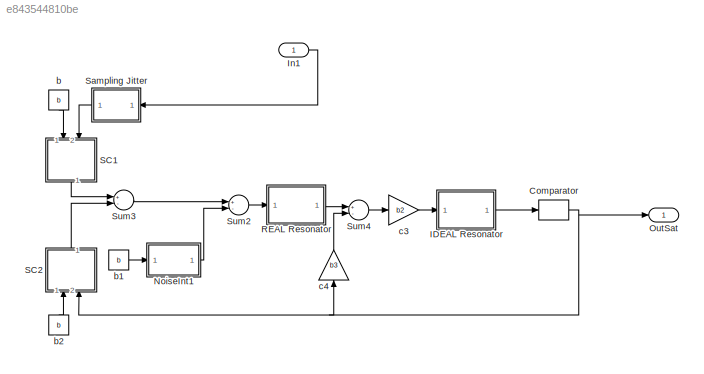
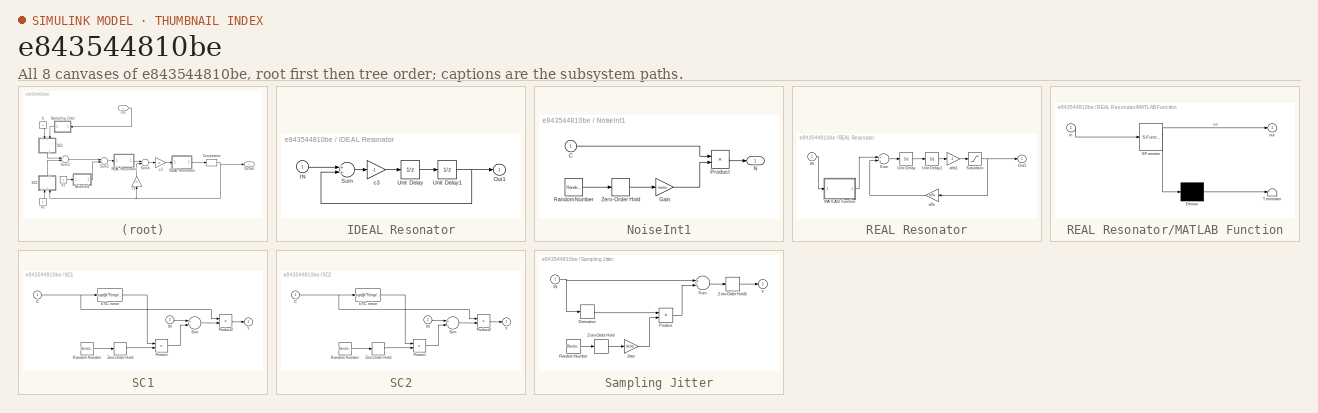
[diagram: thumbnail index - all 8 canvases of the model, root first then tree order]
MODEL slx_e843544810be
KIND model
CONFIG AbsTol = 1e-3
CONFIG FixedStep = Ts
CONFIG MaxStep = 3.90625e-06
CONFIG MinStep = auto
CONFIG RelTol = 1e-3
CONFIG SampleTimeConstraint = Unconstrained
CONFIG Solver = ode3
CONFIG SolverMode = SingleTasking
CONFIG SolverName = ode3
CONFIG StartTime = 0.0
CONFIG StopTime = 6e-3
BLOCK [Relay] Comparator
  OffOutputValue = -Vref
  OnOutputValue = Vref
BLOCK [SubSystem] IDEAL Resonator
  Ports = [1, 1]
  RequestExecContextInheritance = off
BLOCK [Inport] IDEAL Resonator/IN
  IconDisplay = Port number
BLOCK [Outport] IDEAL Resonator/Out1
  IconDisplay = Port number
BLOCK [Sum] IDEAL Resonator/Sum
  Ports = [2, 1]
BLOCK [UnitDelay] IDEAL Resonator/Unit Delay
  InitialCondition = 1
  SampleTime = -1
BLOCK [UnitDelay] IDEAL Resonator/Unit Delay1
  InitialCondition = 1
  SampleTime = -1
BLOCK [Gain] IDEAL Resonator/c3
  Gain = -1
BLOCK [Inport] In1
  IconDisplay = Port number
BLOCK [SubSystem] NoiseInt1
  Ports = [1, 1]
  RequestExecContextInheritance = off
BLOCK [Inport] NoiseInt1/C
  IconDisplay = Port number
BLOCK [Gain] NoiseInt1/Gain
  Gain = noise
BLOCK [Outport] NoiseInt1/N
  IconDisplay = Port number
  InitialOutput = 0
BLOCK [Product] NoiseInt1/Product
  Ports = [2, 1]
BLOCK [RandomNumber] NoiseInt1/Random Number
  SampleTime = Ts
  Seed = seed
BLOCK [ZeroOrderHold] NoiseInt1/Zero-Order Hold
  SampleTime = Ts
BLOCK [Outport] OutSat
  IconDisplay = Port number
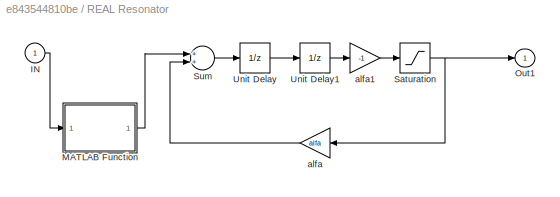
BLOCK [SubSystem] REAL Resonator
  Ports = [1, 1]
  RequestExecContextInheritance = off
BLOCK [Inport] REAL Resonator/IN
  IconDisplay = Port number
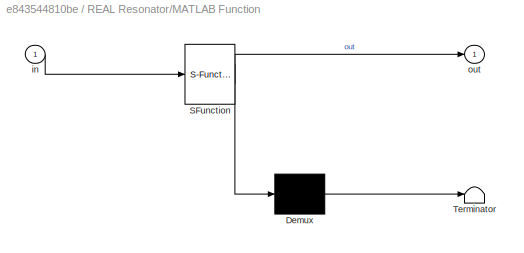
BLOCK [SubSystem] REAL Resonator/MATLAB Function
  ErrorFcn = Stateflow.Translate.translate
  PermitHierarchicalResolution = ExplicitOnly
  Ports = [1, 1]
  RequestExecContextInheritance = off
  SFBlockType = MATLAB Function
  TreatAsAtomicUnit = on
BLOCK [Demux] REAL Resonator/MATLAB Function/ Demux 
  Outputs = 1
  Ports = [1, 1]
BLOCK [S-Function] REAL Resonator/MATLAB Function/ SFunction 
  EnableBusSupport = on
  FunctionName = sf_sfun
  PortCounts = [1 2]
  Ports = [1, 2]
  Tag = Stateflow S-Function BP2_in 2
BLOCK [Terminator] REAL Resonator/MATLAB Function/ Terminator 
BLOCK [Inport] REAL Resonator/MATLAB Function/in
  IconDisplay = Port number
BLOCK [Outport] REAL Resonator/MATLAB Function/out
  IconDisplay = Port number
BLOCK [Outport] REAL Resonator/Out1
  IconDisplay = Port number
BLOCK [Saturate] REAL Resonator/Saturation
  InputPortMap = u0
  LowerLimit = -Amax
  Ports = [1, 1]
  UpperLimit = Amax
BLOCK [Sum] REAL Resonator/Sum
  Ports = [2, 1]
BLOCK [UnitDelay] REAL Resonator/Unit Delay
  InitialCondition = 1
  SampleTime = -1
BLOCK [UnitDelay] REAL Resonator/Unit Delay1
  InitialCondition = 1
  SampleTime = -1
BLOCK [Gain] REAL Resonator/alfa
  Gain = alfa
BLOCK [Gain] REAL Resonator/alfa1
  Gain = -1
BLOCK [SubSystem] SC1
  Ports = [2, 1]
  RequestExecContextInheritance = off
BLOCK [Inport] SC1/C
  IconDisplay = Port number
BLOCK [Inport] SC1/IN
  IconDisplay = Port number
  Port = 2
BLOCK [Product] SC1/Product
  Ports = [2, 1]
BLOCK [Product] SC1/Product2
  Ports = [2, 1]
BLOCK [RandomNumber] SC1/Random Number
  SampleTime = Ts
  Seed = seed
BLOCK [Sum] SC1/Sum
  Ports = [2, 1]
BLOCK [Outport] SC1/Y
  IconDisplay = Port number
  InitialOutput = 0
BLOCK [ZeroOrderHold] SC1/Zero-Order Hold
  SampleTime = Ts
BLOCK [Fcn] SC1/kT//C noise
  Expr = sqrt((k*Temp/Ci)/abs(u))
BLOCK [SubSystem] SC2
  Ports = [2, 1]
  RequestExecContextInheritance = off
BLOCK [Inport] SC2/C
  IconDisplay = Port number
BLOCK [Inport] SC2/IN
  IconDisplay = Port number
  Port = 2
BLOCK [Product] SC2/Product
  Ports = [2, 1]
BLOCK [Product] SC2/Product2
  Ports = [2, 1]
BLOCK [RandomNumber] SC2/Random Number
  SampleTime = Ts
  Seed = seed
BLOCK [Sum] SC2/Sum
  Ports = [2, 1]
BLOCK [Outport] SC2/Y
  IconDisplay = Port number
  InitialOutput = 0
BLOCK [ZeroOrderHold] SC2/Zero-Order Hold
  SampleTime = Ts
BLOCK [Fcn] SC2/kT//C noise
  Expr = sqrt((k*Temp/Ci)/abs(u))
BLOCK [SubSystem] Sampling Jitter
  Ports = [1, 1]
  RequestExecContextInheritance = off
BLOCK [Derivative] Sampling Jitter/Derivative
BLOCK [Inport] Sampling Jitter/IN
  IconDisplay = Port number
BLOCK [Gain] Sampling Jitter/Jitter
  Gain = delta
BLOCK [Product] Sampling Jitter/Product
  Ports = [2, 1]
BLOCK [RandomNumber] Sampling Jitter/Random Number
  SampleTime = Ts
  Seed = seed
BLOCK [Sum] Sampling Jitter/Sum
  Ports = [2, 1]
BLOCK [Outport] Sampling Jitter/Y
  IconDisplay = Port number
  InitialOutput = 0
BLOCK [ZeroOrderHold] Sampling Jitter/Zero-Order Hold
  SampleTime = Ts
BLOCK [ZeroOrderHold] Sampling Jitter/Zero-Order Hold1
  SampleTime = Ts
BLOCK [Sum] Sum2
  Inputs = +-
  Ports = [2, 1]
BLOCK [Sum] Sum3
  Inputs = +-
  Ports = [2, 1]
BLOCK [Sum] Sum4
  Inputs = +-
  Ports = [2, 1]
BLOCK [Constant] b
  Value = b
BLOCK [Constant] b1
  Value = b
BLOCK [Constant] b2
  Value = b
BLOCK [Gain] c3
  Gain = b2
BLOCK [Gain] c4
  Gain = b3
NET Comparator:1 -> OutSat:1, SC2:2, c4:1
LINE IDEAL Resonator/IN:1 -> IDEAL Resonator/Sum:1
LINE IDEAL Resonator/Sum:1 -> IDEAL Resonator/c3:1
NET IDEAL Resonator/Unit Delay1:1 -> IDEAL Resonator/Out1:1, IDEAL Resonator/Sum:2
LINE IDEAL Resonator/Unit Delay:1 -> IDEAL Resonator/Unit Delay1:1
LINE IDEAL Resonator/c3:1 -> IDEAL Resonator/Unit Delay:1
LINE IDEAL Resonator:1 -> Comparator:1
LINE In1:1 -> Sampling Jitter:1
LINE NoiseInt1/C:1 -> NoiseInt1/Product:1
LINE NoiseInt1/Gain:1 -> NoiseInt1/Product:2
LINE NoiseInt1/Product:1 -> NoiseInt1/N:1
LINE NoiseInt1/Random Number:1 -> NoiseInt1/Zero-Order Hold:1
LINE NoiseInt1/Zero-Order Hold:1 -> NoiseInt1/Gain:1
LINE NoiseInt1:1 -> Sum2:2
LINE REAL Resonator/IN:1 -> REAL Resonator/MATLAB Function:1
LINE REAL Resonator/MATLAB Function:1 -> REAL Resonator/Sum:1
NET REAL Resonator/Saturation:1 -> REAL Resonator/Out1:1, REAL Resonator/alfa:1
LINE REAL Resonator/Sum:1 -> REAL Resonator/Unit Delay:1
LINE REAL Resonator/Unit Delay1:1 -> REAL Resonator/alfa1:1
LINE REAL Resonator/Unit Delay:1 -> REAL Resonator/Unit Delay1:1
LINE REAL Resonator/alfa1:1 -> REAL Resonator/Saturation:1
LINE REAL Resonator/alfa:1 -> REAL Resonator/Sum:2
LINE REAL Resonator:1 -> Sum4:1
NET SC1/C:1 -> SC1/Product2:1, SC1/kT//C noise:1
LINE SC1/IN:1 -> SC1/Sum:1
LINE SC1/Product2:1 -> SC1/Y:1
LINE SC1/Product:1 -> SC1/Sum:2
LINE SC1/Random Number:1 -> SC1/Zero-Order Hold:1
LINE SC1/Sum:1 -> SC1/Product2:2
LINE SC1/Zero-Order Hold:1 -> SC1/Product:2
LINE SC1/kT//C noise:1 -> SC1/Product:1
LINE SC1:1 -> Sum3:1
NET SC2/C:1 -> SC2/Product2:1, SC2/kT//C noise:1
LINE SC2/IN:1 -> SC2/Sum:1
LINE SC2/Product2:1 -> SC2/Y:1
LINE SC2/Product:1 -> SC2/Sum:2
LINE SC2/Random Number:1 -> SC2/Zero-Order Hold:1
LINE SC2/Sum:1 -> SC2/Product2:2
LINE SC2/Zero-Order Hold:1 -> SC2/Product:2
LINE SC2/kT//C noise:1 -> SC2/Product:1
LINE SC2:1 -> Sum3:2
LINE Sampling Jitter/Derivative:1 -> Sampling Jitter/Product:1
NET Sampling Jitter/IN:1 -> Sampling Jitter/Derivative:1, Sampling Jitter/Sum:1
LINE Sampling Jitter/Jitter:1 -> Sampling Jitter/Product:2
LINE Sampling Jitter/Product:1 -> Sampling Jitter/Sum:2
LINE Sampling Jitter/Random Number:1 -> Sampling Jitter/Zero-Order Hold:1
LINE Sampling Jitter/Sum:1 -> Sampling Jitter/Zero-Order Hold1:1
LINE Sampling Jitter/Zero-Order Hold1:1 -> Sampling Jitter/Y:1
LINE Sampling Jitter/Zero-Order Hold:1 -> Sampling Jitter/Jitter:1
LINE Sampling Jitter:1 -> SC1:2
LINE Sum2:1 -> REAL Resonator:1
LINE Sum3:1 -> Sum2:1
LINE Sum4:1 -> c3:1
LINE b1:1 -> NoiseInt1:1
LINE b2:1 -> SC2:1
LINE b:1 -> SC1:1
LINE c3:1 -> IDEAL Resonator:1
LINE c4:1 -> Sum4:2
note: NET lines group one-source signal fan-out (src -> all destinations, sorted); 1:1 wires keep LINE
CHART REAL
Resonator/MATLAB Function states=1 transitions=1
  STATE_LABEL 'eML_blk_kernel()'
  STATE_LABEL 'SCRIPT:\nfunction out = slew(in)\n% \n% Models the op-amp slew rate for a discrete time integrator\n%\n% in:   input signal amplitude\n% alfa: effect of finite gain (ideal op-amp alfa=1)\n% sr:   slew rate in V/s\n% GBW:  gain-bandwidth product of the integrator in Hz\n% Ts:   sample time\n%\n% out:  output signal amplitude\n\n%%%%%%%\n\n% ************************************************************************\n...<+1894ch>'
